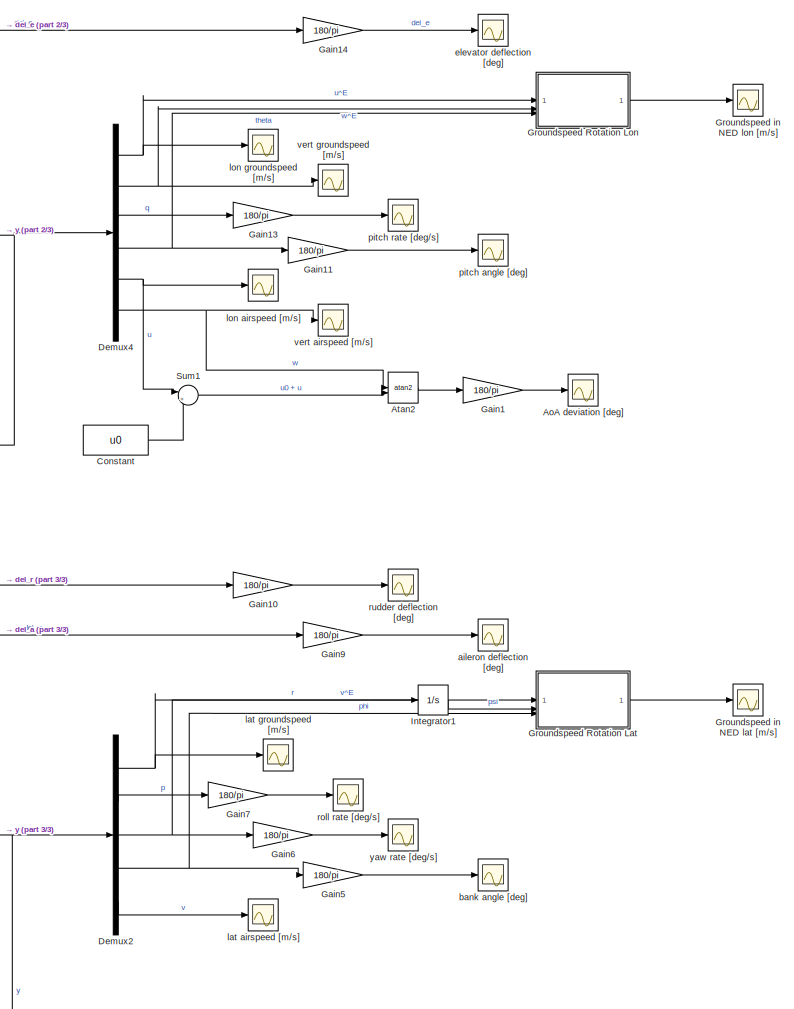
[diagram: root canvas - part 1/3, right side, full height]
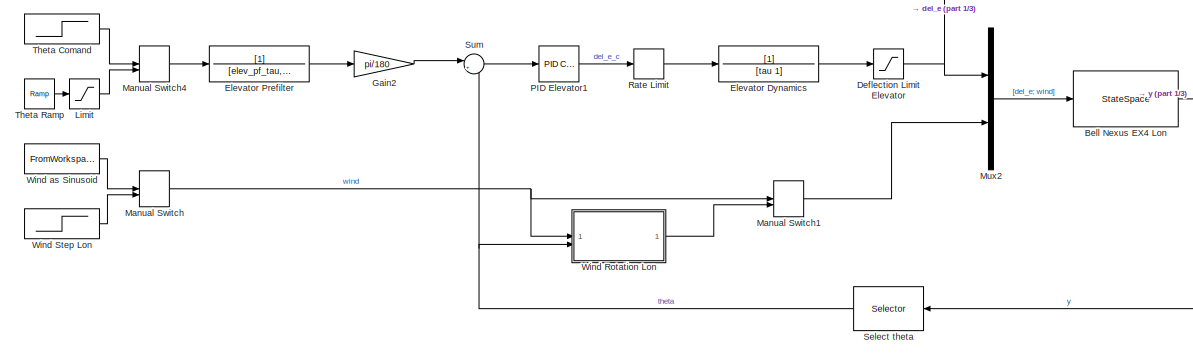
[diagram: root canvas - part 2/3, top left region]
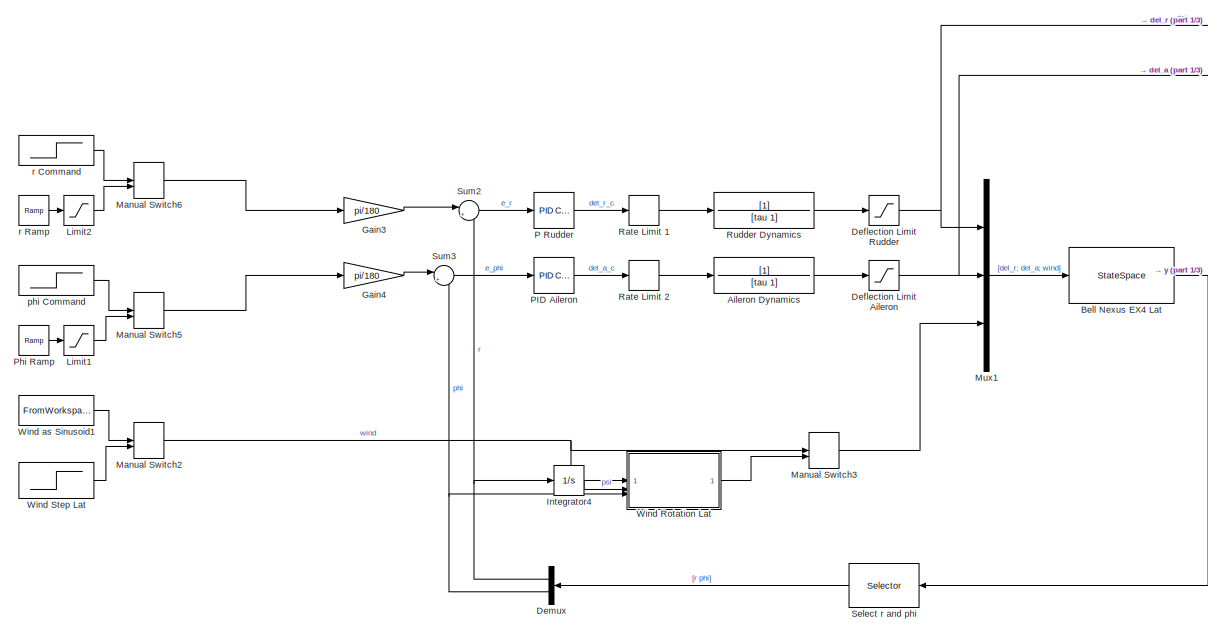
[diagram: root canvas - part 3/3, bottom left region]
MODEL slx_ad5b47032693
KIND model
CONFIG AbsTol = auto
CONFIG EnableMultiTasking = off
CONFIG FixedStep = st
CONFIG MaxStep = auto
CONFIG MinStep = auto
CONFIG RelTol = 1e-3
CONFIG SampleTimeConstraint = Unconstrained
CONFIG SolverName = ode4
CONFIG StartTime = 0.0
CONFIG StopTime = simt
BLOCK [TransferFcn] Aileron Dynamics
  Denominator = [tau 1]
BLOCK [Scope] AoA deviation [deg]
  Floating = off
  NumInputPorts = 1
  ScopeSpecificationString = Simulink.scopes.TimeScopeBlockCfg('CurrentConfiguration', extmgr.ConfigurationSet(extmgr.Configuration('Core','General UI',true),extmgr.Configuration('Core','Source UI',true),extmgr.Configuration('Sources','WiredSimulink',true,'DataLoggingVariableName','ScopeData1'),extmgr.Configuration('Visuals','Time Domain',true,'SerializedDisplays',{struct('MinYLimReal','-0.15891','MaxYLimReal','1.20268','YLab...<+1420ch>
BLOCK [Trigonometry] Atan2
  Operator = atan2
BLOCK [StateSpace] Bell Nexus EX4 Lat
  A = A_lat
  B = B_lat_ext
  C = C_lat_ext
  D = D_lat_ext
  InitialCondition = 0
  ParameterTunability = Optimized
BLOCK [StateSpace] Bell Nexus EX4 Lon
  A = A_lon
  B = B_lon_ext
  C = C_lon_ext
  D = D_lon_ext
  InitialCondition = 0
BLOCK [Constant] Constant
  Value = u0
BLOCK [Saturate] Deflection Limit Aileron
  LowerLimit = ailer_lim(1)*pi/180
  UpperLimit = ailer_lim(2)*pi/180
BLOCK [Saturate] Deflection Limit Elevator
  LowerLimit = elev_lim(1)*pi/180
  UpperLimit = elev_lim(2)*pi/180
BLOCK [Saturate] Deflection Limit Rudder
  LowerLimit = rudder_lim(1)*pi/180
  UpperLimit = rudder_lim(2)*pi/180
BLOCK [Demux] Demux
  Outputs = 2
BLOCK [Demux] Demux2
  Outputs = 5
BLOCK [Demux] Demux4
  Outputs = 6
BLOCK [TransferFcn] Elevator Dynamics
  Denominator = [tau 1]
BLOCK [TransferFcn] Elevator Prefilter
  Denominator = [elev_pf_tau, 1]
BLOCK [Gain] Gain1
  Gain = 180/pi
BLOCK [Gain] Gain10
  Gain = 180/pi
BLOCK [Gain] Gain11
  Gain = 180/pi
BLOCK [Gain] Gain13
  Gain = 180/pi
BLOCK [Gain] Gain14
  Gain = 180/pi
BLOCK [Gain] Gain2
  Gain = pi/180
BLOCK [Gain] Gain3
  Gain = pi/180
BLOCK [Gain] Gain4
  Gain = pi/180
BLOCK [Gain] Gain5
  Gain = 180/pi
BLOCK [Gain] Gain6
  Gain = 180/pi
BLOCK [Gain] Gain7
  Gain = 180/pi
BLOCK [Gain] Gain9
  Gain = 180/pi
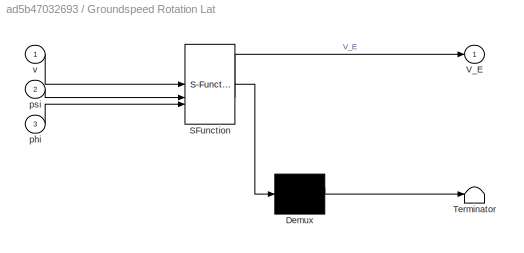
BLOCK [SubSystem] Groundspeed Rotation Lat
  ErrorFcn = Stateflow.Translate.translate
  LibrarySourceBlock = simulink/User-Defined\nFunctions/MATLAB Function
  PermitHierarchicalResolution = ExplicitOnly
  SFBlockType = MATLAB Function
  TreatAsAtomicUnit = on
BLOCK [Demux] Groundspeed Rotation Lat/ Demux 
  Outputs = 1
BLOCK [S-Function] Groundspeed Rotation Lat/ SFunction 
  EnableBusSupport = on
  FunctionName = sf_sfun
  PortCounts = [3 2]
  SFcnIsStateOwnerBlock = off
  SFunctionDeploymentMode = off
  Tag = Stateflow S-Function 4
BLOCK [Terminator] Groundspeed Rotation Lat/ Terminator 
BLOCK [Outport] Groundspeed Rotation Lat/V_E
BLOCK [Inport] Groundspeed Rotation Lat/phi
  Port = 3
BLOCK [Inport] Groundspeed Rotation Lat/psi
  Port = 2
BLOCK [Inport] Groundspeed Rotation Lat/v
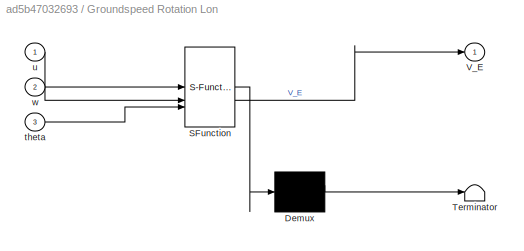
BLOCK [SubSystem] Groundspeed Rotation Lon
  ErrorFcn = Stateflow.Translate.translate
  LibrarySourceBlock = simulink/User-Defined\nFunctions/MATLAB Function
  PermitHierarchicalResolution = ExplicitOnly
  SFBlockType = MATLAB Function
  TreatAsAtomicUnit = on
BLOCK [Demux] Groundspeed Rotation Lon/ Demux 
  Outputs = 1
BLOCK [S-Function] Groundspeed Rotation Lon/ SFunction 
  EnableBusSupport = on
  FunctionName = sf_sfun
  PortCounts = [3 2]
  SFcnIsStateOwnerBlock = off
  SFunctionDeploymentMode = off
  Tag = Stateflow S-Function 3
BLOCK [Terminator] Groundspeed Rotation Lon/ Terminator 
BLOCK [Outport] Groundspeed Rotation Lon/V_E
BLOCK [Inport] Groundspeed Rotation Lon/theta
  Port = 3
BLOCK [Inport] Groundspeed Rotation Lon/u
BLOCK [Inport] Groundspeed Rotation Lon/w
  Port = 2
BLOCK [Scope] Groundspeed in NED lat [m//s]
  Floating = off
  NumInputPorts = 1
  ScopeSpecificationString = Simulink.scopes.TimeScopeBlockCfg('CurrentConfiguration', extmgr.ConfigurationSet(extmgr.Configuration('Core','General UI',true),extmgr.Configuration('Core','Source UI',true),extmgr.Configuration('Sources','WiredSimulink',true,'DataLoggingVariableName','ScopeData10'),extmgr.Configuration('Visuals','Time Domain',true,'SerializedDisplays',{struct('MinYLimReal','-0.05015','MaxYLimReal','0.3065','YLab...<+1890ch>
BLOCK [Scope] Groundspeed in NED lon [m//s]
  Floating = off
  NumInputPorts = 1
  ScopeSpecificationString = Simulink.scopes.TimeScopeBlockCfg('CurrentConfiguration', extmgr.ConfigurationSet(extmgr.Configuration('Core','General UI',true),extmgr.Configuration('Core','Source UI',true),extmgr.Configuration('Sources','WiredSimulink',true,'DataLoggingVariableName','ScopeData11'),extmgr.Configuration('Visuals','Time Domain',true,'SerializedDisplays',{struct('MinYLimReal','-27.49716','MaxYLimReal','30.02697','Y...<+1900ch>
BLOCK [Integrator] Integrator1
BLOCK [Integrator] Integrator4
BLOCK [Saturate] Limit
  LowerLimit = -abs(theta_sp)
  UpperLimit = abs(theta_sp)
BLOCK [Saturate] Limit1
  LinearizeAsGain = off
  LowerLimit = -abs(phi_sp)
  UpperLimit = abs(phi_sp)
BLOCK [Saturate] Limit2
  LinearizeAsGain = off
  LowerLimit = -abs(r_sp)
  UpperLimit = abs(r_sp)
BLOCK [ManualSwitch] Manual Switch
  CurrentSetting = 0
BLOCK [ManualSwitch] Manual Switch1
BLOCK [ManualSwitch] Manual Switch2
  CurrentSetting = 0
BLOCK [ManualSwitch] Manual Switch3
BLOCK [ManualSwitch] Manual Switch4
BLOCK [ManualSwitch] Manual Switch5
BLOCK [ManualSwitch] Manual Switch6
BLOCK [Mux] Mux1
  DisplayOption = bar
  Inputs = 3
BLOCK [Mux] Mux2
  DisplayOption = bar
  Inputs = 2
BLOCK [Reference] P Rudder  REF=slpidlib/PID Controller
  LibrarySourceBlock = simulink/Continuous/PID Controller
  SourceBlock = slpidlib/PID Controller
  SourceType = PID 1dof
BLOCK [Reference] PID Aileron  REF=slpidlib/PID Controller
  LibrarySourceBlock = simulink/Continuous/PID Controller
  SourceBlock = slpidlib/PID Controller
  SourceType = PID 1dof
BLOCK [Reference] PID Elevator1  REF=slpidlib/PID Controller
  LibrarySourceBlock = simulink/Continuous/PID Controller
  SourceBlock = slpidlib/PID Controller
  SourceType = PID 1dof
BLOCK [Reference] Phi Ramp  REF=simulink/Sources/Ramp
  SourceBlock = simulink/Sources/Ramp
  SourceType = Ramp
BLOCK [RateLimiter] Rate Limit
  FallingSlewLimit = -rate_lim*pi/180
  RisingSlewLimit = rate_lim*pi/180
  SampleTimeMode = inherited
BLOCK [RateLimiter] Rate Limit 1
  FallingSlewLimit = -rate_lim*pi/180
  RisingSlewLimit = rate_lim*pi/180
  SampleTimeMode = inherited
BLOCK [RateLimiter] Rate Limit 2
  FallingSlewLimit = -rate_lim*pi/180
  RisingSlewLimit = rate_lim*pi/180
  SampleTimeMode = inherited
BLOCK [TransferFcn] Rudder Dynamics
  Denominator = [tau 1]
BLOCK [Selector] Select r and phi
  IndexOptions = Index vector (dialog)
  Indices = [3, 4]
  InputPortWidth = 5
  OutputSizes = 1
BLOCK [Selector] Select theta
  IndexOptions = Index vector (dialog)
  Indices = [4]
  InputPortWidth = 6
  OutputSizes = 1
BLOCK [Sum] Sum
  Inputs = |+-
BLOCK [Sum] Sum1
  Inputs = |++
BLOCK [Sum] Sum2
  Inputs = |+-
BLOCK [Sum] Sum3
  Inputs = |+-
BLOCK [Step] Theta Comand
  After = theta_sp
  SampleTime = 0
  Time = theta_st_time
BLOCK [Reference] Theta Ramp  REF=simulink/Sources/Ramp
  SourceBlock = simulink/Sources/Ramp
  SourceType = Ramp
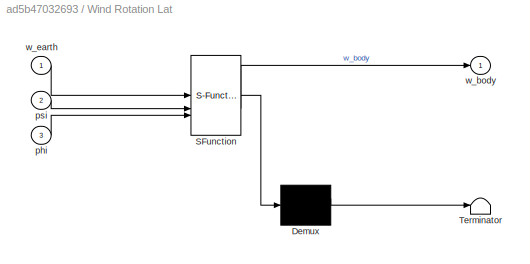
BLOCK [SubSystem] Wind Rotation Lat
  ErrorFcn = Stateflow.Translate.translate
  LibrarySourceBlock = simulink/User-Defined\nFunctions/MATLAB Function
  PermitHierarchicalResolution = ExplicitOnly
  SFBlockType = MATLAB Function
  TreatAsAtomicUnit = on
BLOCK [Demux] Wind Rotation Lat/ Demux 
  Outputs = 1
BLOCK [S-Function] Wind Rotation Lat/ SFunction 
  EnableBusSupport = on
  FunctionName = sf_sfun
  PortCounts = [3 2]
  SFcnIsStateOwnerBlock = off
  SFunctionDeploymentMode = off
  Tag = Stateflow S-Function 1
BLOCK [Terminator] Wind Rotation Lat/ Terminator 
BLOCK [Inport] Wind Rotation Lat/phi
  Port = 3
BLOCK [Inport] Wind Rotation Lat/psi
  Port = 2
BLOCK [Outport] Wind Rotation Lat/w_body
BLOCK [Inport] Wind Rotation Lat/w_earth
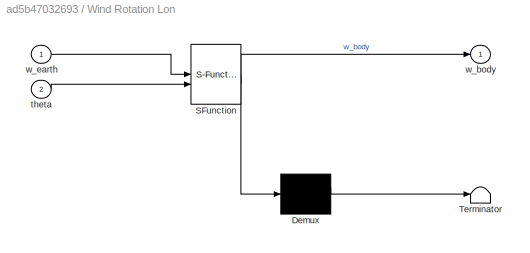
BLOCK [SubSystem] Wind Rotation Lon 
  ErrorFcn = Stateflow.Translate.translate
  LibrarySourceBlock = simulink/User-Defined\nFunctions/MATLAB Function
  PermitHierarchicalResolution = ExplicitOnly
  SFBlockType = MATLAB Function
  TreatAsAtomicUnit = on
BLOCK [Demux] Wind Rotation Lon / Demux 
  Outputs = 1
BLOCK [S-Function] Wind Rotation Lon / SFunction 
  EnableBusSupport = on
  FunctionName = sf_sfun
  PortCounts = [2 2]
  SFcnIsStateOwnerBlock = off
  SFunctionDeploymentMode = off
  Tag = Stateflow S-Function 2
BLOCK [Terminator] Wind Rotation Lon / Terminator 
BLOCK [Inport] Wind Rotation Lon /theta
  Port = 2
BLOCK [Outport] Wind Rotation Lon /w_body
BLOCK [Inport] Wind Rotation Lon /w_earth
BLOCK [Step] Wind Step Lat
  After = wind_lat
  Before = [0 0 0]
  SampleTime = 0
  Time = w_st_time
BLOCK [Step] Wind Step Lon
  After = wind_lon
  Before = [0 0 0]
  SampleTime = 0
  Time = w_st_time
BLOCK [FromWorkspace] Wind as Sinusoid
  VariableName = [t' wind_sine]
BLOCK [FromWorkspace] Wind as Sinusoid1
  VariableName = [t' wind_sine]
BLOCK [Scope] aileron deflection [deg]
  Floating = off
  NumInputPorts = 1
  ScopeSpecificationString = Simulink.scopes.TimeScopeBlockCfg('CurrentConfiguration', extmgr.ConfigurationSet(extmgr.Configuration('Core','General UI',true),extmgr.Configuration('Core','Source UI',true),extmgr.Configuration('Sources','WiredSimulink',true,'DataLoggingVariableName','ScopeData8'),extmgr.Configuration('Visuals','Time Domain',true,'SerializedDisplays',{struct('MinYLimReal','-6.93652','MaxYLimReal','7.81812','YLab...<+1540ch>
BLOCK [Scope] bank angle [deg]
  Floating = off
  NumInputPorts = 1
  ScopeSpecificationString = Simulink.scopes.TimeScopeBlockCfg('CurrentConfiguration', extmgr.ConfigurationSet(extmgr.Configuration('Core','General UI',true),extmgr.Configuration('Core','Source UI',true),extmgr.Configuration('Sources','WiredSimulink',true,'DataLoggingVariableName','ScopeData3'),extmgr.Configuration('Visuals','Time Domain',true,'SerializedDisplays',{struct('MinYLimReal','-8.40997','MaxYLimReal','8.57407','YLab...<+1534ch>
BLOCK [Scope] elevator deflection [deg]
  Floating = off
  NumInputPorts = 1
  ScopeSpecificationString = Simulink.scopes.TimeScopeBlockCfg('CurrentConfiguration', extmgr.ConfigurationSet(extmgr.Configuration('Core','General UI',true),extmgr.Configuration('Core','Source UI',true),extmgr.Configuration('Sources','WiredSimulink',true,'DataLoggingVariableName','ScopeData2'),extmgr.Configuration('Visuals','Time Domain',true,'SerializedDisplays',{struct('MinYLimReal','-19.57687','MaxYLimReal','26.19228','YL...<+1527ch>
BLOCK [Scope] lat airspeed [m//s]
  Floating = off
  NumInputPorts = 1
  ScopeSpecificationString = Simulink.scopes.TimeScopeBlockCfg('CurrentConfiguration', extmgr.ConfigurationSet(extmgr.Configuration('Core','General UI',true),extmgr.Configuration('Core','Source UI',true),extmgr.Configuration('Sources','WiredSimulink',true,'DataLoggingVariableName','ScopeData4'),extmgr.Configuration('Visuals','Time Domain',true,'SerializedDisplays',{struct('MinYLimReal','-5.36539','MaxYLimReal','6.063','YLabel...<+1483ch>
BLOCK [Scope] lat groundspeed [m//s]
  Floating = off
  NumInputPorts = 1
  ScopeSpecificationString = Simulink.scopes.TimeScopeBlockCfg('CurrentConfiguration', extmgr.ConfigurationSet(extmgr.Configuration('Core','General UI',true),extmgr.Configuration('Core','Source UI',true),extmgr.Configuration('Sources','WiredSimulink',true,'DataLoggingVariableName','ScopeData5'),extmgr.Configuration('Visuals','Time Domain',true,'SerializedDisplays',{struct('MinYLimReal','-3.22276','MaxYLimReal','3.32523','YLab...<+1493ch>
BLOCK [Scope] lon airspeed [m//s]
  Floating = off
  NumInputPorts = 1
  ScopeSpecificationString = Simulink.scopes.TimeScopeBlockCfg('CurrentConfiguration', extmgr.ConfigurationSet(extmgr.Configuration('Core','General UI',true),extmgr.Configuration('Core','Source UI',true),extmgr.Configuration('Sources','WiredSimulink',true,'DataLoggingVariableName','ScopeData1'),extmgr.Configuration('Visuals','Time Domain',true,'SerializedDisplays',{struct('MinYLimReal','-0.12616','MaxYLimReal','1.13544','YLab...<+1479ch>
BLOCK [Scope] lon groundspeed [m//s]
  Floating = off
  NumInputPorts = 1
  ScopeSpecificationString = Simulink.scopes.TimeScopeBlockCfg('CurrentConfiguration', extmgr.ConfigurationSet(extmgr.Configuration('Core','General UI',true),extmgr.Configuration('Core','Source UI',true),extmgr.Configuration('Sources','WiredSimulink',true,'DataLoggingVariableName','ScopeData2'),extmgr.Configuration('Visuals','Time Domain',true,'SerializedDisplays',{struct('MinYLimReal','-31.0202','MaxYLimReal','3.44669','YLab...<+1430ch>
BLOCK [Step] phi Command
  After = phi_sp
  SampleTime = 0
  Time = phi_st_time
BLOCK [Scope] pitch angle [deg]
  Floating = off
  NumInputPorts = 1
  ScopeSpecificationString = Simulink.scopes.TimeScopeBlockCfg('CurrentConfiguration', extmgr.ConfigurationSet(extmgr.Configuration('Core','General UI',true),extmgr.Configuration('Core','Source UI',true),extmgr.Configuration('Sources','WiredSimulink',true,'DataLoggingVariableName','ScopeData3'),extmgr.Configuration('Visuals','Time Domain',true,'SerializedDisplays',{struct('MinYLimReal','-19.40536','MaxYLimReal','37.07185','YL...<+1541ch>
BLOCK [Scope] pitch rate [deg//s]
  Floating = off
  NumInputPorts = 1
  ScopeSpecificationString = Simulink.scopes.TimeScopeBlockCfg('CurrentConfiguration', extmgr.ConfigurationSet(extmgr.Configuration('Core','General UI',true),extmgr.Configuration('Core','Source UI',true),extmgr.Configuration('Sources','WiredSimulink',true,'DataLoggingVariableName','ScopeData4'),extmgr.Configuration('Visuals','Time Domain',true,'SerializedDisplays',{struct('MinYLimReal','-0.12467','MaxYLimReal','0.1324','YLabe...<+1492ch>
BLOCK [Step] r Command
  After = r_sp
  SampleTime = 0
  Time = r_st_time
BLOCK [Reference] r Ramp  REF=simulink/Sources/Ramp
  SourceBlock = simulink/Sources/Ramp
  SourceType = Ramp
BLOCK [Scope] roll rate [deg//s]
  Floating = off
  NumInputPorts = 1
  ScopeSpecificationString = Simulink.scopes.TimeScopeBlockCfg('CurrentConfiguration', extmgr.ConfigurationSet(extmgr.Configuration('Core','General UI',true),extmgr.Configuration('Core','Source UI',true),extmgr.Configuration('Sources','WiredSimulink',true,'DataLoggingVariableName','ScopeData6'),extmgr.Configuration('Visuals','Time Domain',true,'SerializedDisplays',{struct('MinYLimReal','-0.10116','MaxYLimReal','0.10214','YLab...<+1495ch>
BLOCK [Scope] rudder deflection [deg]
  Floating = off
  NumInputPorts = 1
  ScopeSpecificationString = Simulink.scopes.TimeScopeBlockCfg('CurrentConfiguration', extmgr.ConfigurationSet(extmgr.Configuration('Core','General UI',true),extmgr.Configuration('Core','Source UI',true),extmgr.Configuration('Sources','WiredSimulink',true,'DataLoggingVariableName','ScopeData9'),extmgr.Configuration('Visuals','Time Domain',true,'SerializedDisplays',{struct('MinYLimReal','-27.15235','MaxYLimReal','4.58294','YLa...<+1513ch>
BLOCK [Scope] vert airspeed [m//s]
  Floating = off
  NumInputPorts = 1
  ScopeSpecificationString = Simulink.scopes.TimeScopeBlockCfg('CurrentConfiguration', extmgr.ConfigurationSet(extmgr.Configuration('Core','General UI',true),extmgr.Configuration('Core','Source UI',true),extmgr.Configuration('Sources','WiredSimulink',true,'DataLoggingVariableName','ScopeData5'),extmgr.Configuration('Visuals','Time Domain',true,'SerializedDisplays',{struct('MinYLimReal','-13.92325','MaxYLimReal','22.72977','YL...<+1497ch>
BLOCK [Scope] vert groundspeed [m//s]
  Floating = off
  NumInputPorts = 1
  ScopeSpecificationString = Simulink.scopes.TimeScopeBlockCfg('CurrentConfiguration', extmgr.ConfigurationSet(extmgr.Configuration('Core','General UI',true),extmgr.Configuration('Core','Source UI',true),extmgr.Configuration('Sources','WiredSimulink',true),extmgr.Configuration('Visuals','Time Domain',true,'SerializedDisplays',{struct('MinYLimReal','-2.3703','MaxYLimReal','11.36817','YLabelReal','','MinYLimMag','0.00000','MaxY...<+1380ch>
BLOCK [Scope] yaw rate [deg//s]
  Floating = off
  NumInputPorts = 1
  ScopeSpecificationString = Simulink.scopes.TimeScopeBlockCfg('CurrentConfiguration', extmgr.ConfigurationSet(extmgr.Configuration('Core','General UI',true),extmgr.Configuration('Core','Source UI',true),extmgr.Configuration('Sources','WiredSimulink',true,'DataLoggingVariableName','ScopeData7'),extmgr.Configuration('Visuals','Time Domain',true,'SerializedDisplays',{struct('MinYLimReal','-7.62868','MaxYLimReal','68.65814','YLa...<+1513ch>
LINE Aileron Dynamics:1 -> Deflection Limit Aileron:1
LINE Atan2:1 -> Gain1:1
NET Bell Nexus EX4 Lat:1 -> Demux2:1, Select r and phi:1
NET Bell Nexus EX4 Lon:1 -> Demux4:1, Select theta:1
LINE Constant:1 -> Sum1:2
NET Deflection Limit Aileron:1 -> Gain9:1, Mux1:2
NET Deflection Limit Elevator:1 -> Gain14:1, Mux2:1
NET Deflection Limit Rudder:1 -> Gain10:1, Mux1:1
NET Demux2:1 -> Groundspeed Rotation Lat:1, lat groundspeed [m//s]:1
LINE Demux2:2 -> Gain7:1
NET Demux2:3 -> Gain6:1, Integrator1:1
NET Demux2:4 -> Gain5:1, Groundspeed Rotation Lat:3
LINE Demux2:5 -> lat airspeed [m//s]:1
NET Demux4:1 -> Groundspeed Rotation Lon:1, lon groundspeed [m//s]:1
NET Demux4:2 -> Groundspeed Rotation Lon:2, vert groundspeed [m//s]:1
LINE Demux4:3 -> Gain13:1
NET Demux4:4 -> Gain11:1, Groundspeed Rotation Lon:3
NET Demux4:5 -> Sum1:1, lon airspeed [m//s]:1
NET Demux4:6 -> Atan2:1, vert airspeed [m//s]:1
NET Demux:1 -> Integrator4:1, Sum2:2
NET Demux:2 -> Sum3:2, Wind Rotation Lat:3
LINE Elevator Dynamics:1 -> Deflection Limit Elevator:1
LINE Elevator Prefilter:1 -> Gain2:1
LINE Gain10:1 -> rudder deflection [deg]:1
LINE Gain11:1 -> pitch angle [deg]:1
LINE Gain13:1 -> pitch rate [deg//s]:1
LINE Gain14:1 -> elevator deflection [deg]:1
LINE Gain1:1 -> AoA deviation [deg]:1
LINE Gain2:1 -> Sum:1
LINE Gain3:1 -> Sum2:1
LINE Gain4:1 -> Sum3:1
LINE Gain5:1 -> bank angle [deg]:1
LINE Gain6:1 -> yaw rate [deg//s]:1
LINE Gain7:1 -> roll rate [deg//s]:1
LINE Gain9:1 -> aileron deflection [deg]:1
LINE Groundspeed Rotation Lat:1 -> Groundspeed in NED lat [m//s]:1
LINE Groundspeed Rotation Lon:1 -> Groundspeed in NED lon [m//s]:1
LINE Integrator1:1 -> Groundspeed Rotation Lat:2
LINE Integrator4:1 -> Wind Rotation Lat:2
LINE Limit1:1 -> Manual Switch5:2
LINE Limit2:1 -> Manual Switch6:2
LINE Limit:1 -> Manual Switch4:2
LINE Manual Switch1:1 -> Mux2:2
NET Manual Switch2:1 -> Manual Switch3:1, Wind Rotation Lat:1
LINE Manual Switch3:1 -> Mux1:3
LINE Manual Switch4:1 -> Elevator Prefilter:1
LINE Manual Switch5:1 -> Gain4:1
LINE Manual Switch6:1 -> Gain3:1
NET Manual Switch:1 -> Manual Switch1:1, Wind Rotation Lon :1
LINE Mux1:1 -> Bell Nexus EX4 Lat:1
LINE Mux2:1 -> Bell Nexus EX4 Lon:1
LINE P Rudder:1 -> Rate Limit 1:1
LINE PID Aileron:1 -> Rate Limit 2:1
LINE PID Elevator1:1 -> Rate Limit:1
LINE Phi Ramp:1 -> Limit1:1
LINE Rate Limit 1:1 -> Rudder Dynamics:1
LINE Rate Limit 2:1 -> Aileron Dynamics:1
LINE Rate Limit:1 -> Elevator Dynamics:1
LINE Rudder Dynamics:1 -> Deflection Limit Rudder:1
LINE Select r and phi:1 -> Demux:1
NET Select theta:1 -> Sum:2, Wind Rotation Lon :2
LINE Sum1:1 -> Atan2:2
LINE Sum2:1 -> P Rudder:1
LINE Sum3:1 -> PID Aileron:1
LINE Sum:1 -> PID Elevator1:1
LINE Theta Comand:1 -> Manual Switch4:1
LINE Theta Ramp:1 -> Limit:1
LINE Wind Rotation Lat:1 -> Manual Switch3:2
LINE Wind Rotation Lon :1 -> Manual Switch1:2
LINE Wind Step Lat:1 -> Manual Switch2:2
LINE Wind Step Lon:1 -> Manual Switch:2
LINE Wind as Sinusoid1:1 -> Manual Switch2:1
LINE Wind as Sinusoid:1 -> Manual Switch:1
LINE phi Command:1 -> Manual Switch5:1
LINE r Command:1 -> Manual Switch6:1
LINE r Ramp:1 -> Limit2:1
note: NET lines group one-source signal fan-out (src -> all destinations, sorted); 1:1 wires keep LINE
CHART Wind Rotation Lat states=1 transitions=1
  STATE_LABEL 'eML_blk_kernel()'
  STATE_LABEL 'SCRIPT:\nfunction w_body = fcn(w_earth, psi, phi)\nrot = eul2rotm([-psi 0 -phi]);\nw_body = rot*w_earth;\n'
CHART Wind Rotation Lon  states=1 transitions=1
  STATE_LABEL 'eML_blk_kernel()'
  STATE_LABEL 'SCRIPT:\nfunction w_body = fcn(w_earth, theta)\nrot = eul2rotm([0 -theta 0]);\nw_body = rot*w_earth;\n'
CHART Groundspeed Rotation Lon states=1 transitions=1
  STATE_LABEL 'eML_blk_kernel()'
  STATE_LABEL "SCRIPT:\nfunction V_E = fcn(u, w, theta)\nrot = eul2rotm([0 theta 0]);\nV_E = rot*[u 0 w]';\n"
CHART Groundspeed Rotation Lat states=1 transitions=1
  STATE_LABEL 'eML_blk_kernel()'
  STATE_LABEL "SCRIPT:\nfunction V_E = fcn(v, psi, phi)\nrot = eul2rotm([psi 0 phi]);\nV_E = rot*[0 v 0]';\n"
CHART  states=0 transitions=0
CHART  states=0 transitions=0
CHART  states=0 transitions=0
CHART  states=0 transitions=0
